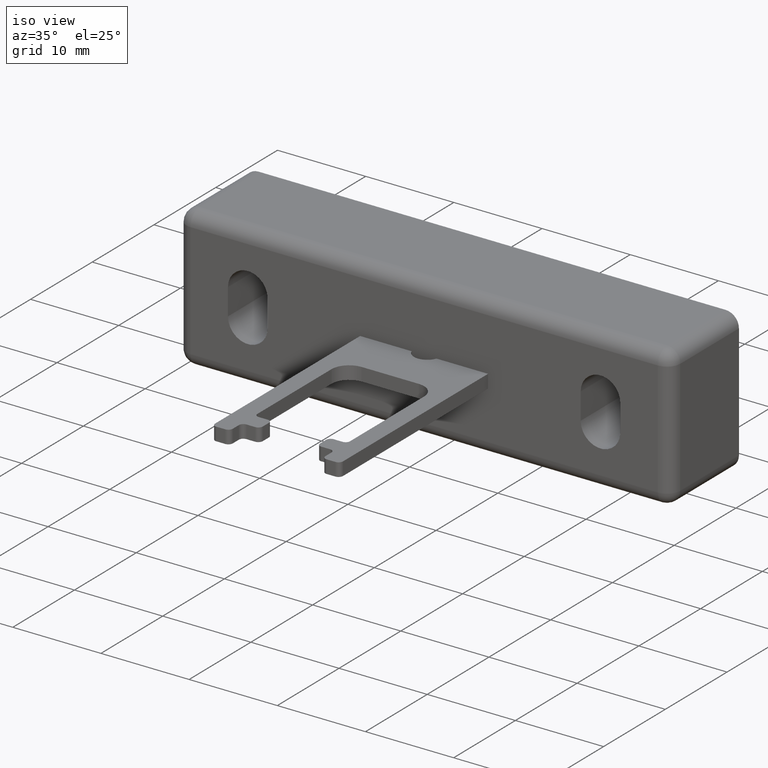
[diagram: clean part render]
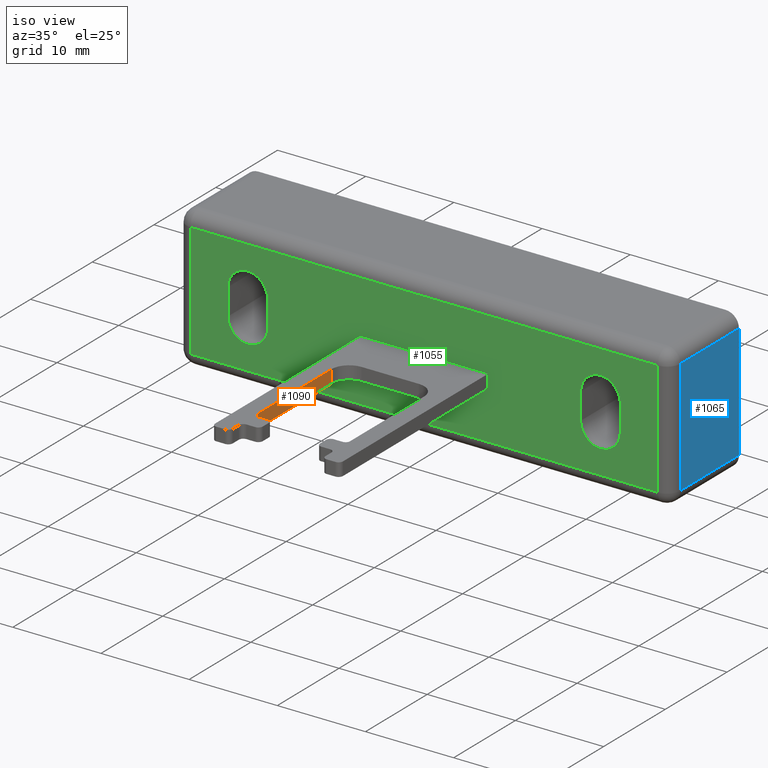
[diagram: same view with three faces highlighted in distinct colors, each labeled with its STEP entity id]
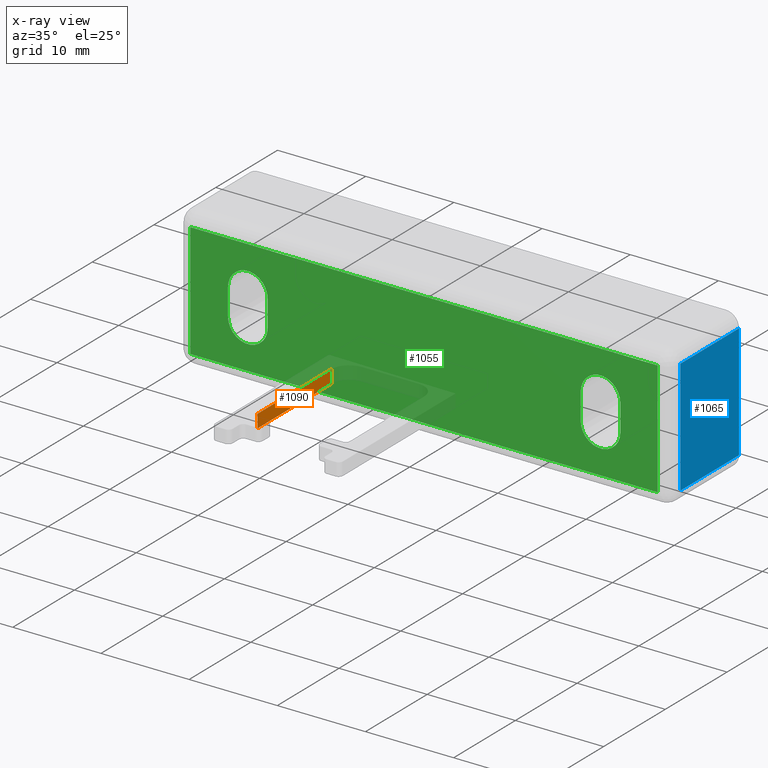
[diagram: x-ray of the same camera — body ghosted, the three highlighted faces saturated]
A machine part, iso view with three faces highlighted in distinct colors.
The next image is the same camera in x-ray (body ghosted, the three faces saturated) — at least one of them is partly hidden behind the body in this view.
Their STEP definitions:

[orange] entity #1090 — the highlighted planar face has unit normal (1, 0, 0).
#50=PLANE('',#1206);
#141=LINE('',#1838,#243);
#142=LINE('',#1841,#244);
#143=LINE('',#1843,#245);
#144=LINE('',#1844,#246);
#243=VECTOR('',#1509,1.5);
#244=VECTOR('',#1512,12.);
#245=VECTOR('',#1513,12.);
#246=VECTOR('',#1514,1.5);
#340=FACE_OUTER_BOUND('',#404,.T.);
#404=EDGE_LOOP('',(#937,#938,#939,#940));
#559=VERTEX_POINT('',#1834);
#560=VERTEX_POINT('',#1836);
#561=VERTEX_POINT('',#1840);
#562=VERTEX_POINT('',#1842);
#702=EDGE_CURVE('',#560,#559,#141,.T.);
#703=EDGE_CURVE('',#559,#561,#142,.T.);
#704=EDGE_CURVE('',#562,#560,#143,.T.);
#705=EDGE_CURVE('',#562,#561,#144,.T.);
#937=ORIENTED_EDGE('',*,*,#703,.F.);
#938=ORIENTED_EDGE('',*,*,#702,.F.);
#939=ORIENTED_EDGE('',*,*,#704,.F.);
#940=ORIENTED_EDGE('',*,*,#705,.T.);
#1090=ADVANCED_FACE('',(#340),#50,.T.);
#1206=AXIS2_PLACEMENT_3D('',#1839,#1510,#1511);
#1509=DIRECTION('',(-1.85037170770859E-16,1.,0.));
#1510=DIRECTION('center_axis',(1.,1.85037170770859E-16,0.));
#1511=DIRECTION('ref_axis',(0.,0.,-1.));
#1512=DIRECTION('',(0.,0.,-1.));
#1513=DIRECTION('',(0.,0.,1.));
#1514=DIRECTION('',(-1.85037170770859E-16,1.,0.));
#1834=CARTESIAN_POINT('',(22.7499999999999,8.5,19.5));
#1836=CARTESIAN_POINT('',(22.7499999999999,7.,19.5));
#1838=CARTESIAN_POINT('',(22.7499999999999,7.,19.5));
#1839=CARTESIAN_POINT('Origin',(22.7499999999999,7.,19.5));
#1840=CARTESIAN_POINT('',(22.7499999999999,8.5,7.5));
#1841=CARTESIAN_POINT('',(22.7499999999999,8.5,9.75000000000001));
#1842=CARTESIAN_POINT('',(22.7499999999999,7.,7.5));
#1843=CARTESIAN_POINT('',(22.7499999999999,7.,9.75000000000001));
#1844=CARTESIAN_POINT('',(22.7499999999999,7.,7.5));

[blue] entity #1065 — the highlighted planar face has unit normal (1, -0, 0).
#39=PLANE('',#1152);
#66=LINE('',#1607,#168);
#69=LINE('',#1611,#171);
#75=LINE('',#1626,#177);
#94=LINE('',#1681,#196);
#168=VECTOR('',#1274,9.50000000000001);
#171=VECTOR('',#1279,13.);
#177=VECTOR('',#1295,9.50000000000001);
#196=VECTOR('',#1354,13.);
#315=FACE_OUTER_BOUND('',#379,.T.);
#379=EDGE_LOOP('',(#837,#838,#839,#840));
#471=VERTEX_POINT('',#1567);
#476=VERTEX_POINT('',#1579);
#484=VERTEX_POINT('',#1605);
#487=VERTEX_POINT('',#1622);
#589=EDGE_CURVE('',#484,#476,#66,.T.);
#592=EDGE_CURVE('',#476,#471,#69,.T.);
#600=EDGE_CURVE('',#471,#487,#75,.T.);
#627=EDGE_CURVE('',#484,#487,#94,.T.);
#837=ORIENTED_EDGE('',*,*,#589,.F.);
#838=ORIENTED_EDGE('',*,*,#627,.T.);
#839=ORIENTED_EDGE('',*,*,#600,.F.);
#840=ORIENTED_EDGE('',*,*,#592,.F.);
#1065=ADVANCED_FACE('',(#315),#39,.T.);
#1152=AXIS2_PLACEMENT_3D('',#1683,#1356,#1357);
#1274=DIRECTION('',(-1.61486985400023E-15,-1.,0.));
#1279=DIRECTION('',(0.,0.,1.));
#1295=DIRECTION('',(1.61486985400023E-15,1.,0.));
#1354=DIRECTION('',(0.,0.,1.));
#1356=DIRECTION('center_axis',(1.,-1.61486985400023E-15,0.));
#1357=DIRECTION('ref_axis',(1.4210854715202E-15,1.,0.));
#1567=CARTESIAN_POINT('',(56.,1.5,14.5));
#1579=CARTESIAN_POINT('',(56.,1.5,1.5));
#1605=CARTESIAN_POINT('',(56.,11.,1.5));
#1607=CARTESIAN_POINT('',(56.,2.74999999999998,1.5));
#1611=CARTESIAN_POINT('',(56.,1.5,0.));
#1622=CARTESIAN_POINT('',(56.,11.,14.5));
#1626=CARTESIAN_POINT('',(56.,2.74999999999998,14.5));
#1681=CARTESIAN_POINT('',(56.,11.,0.));
#1683=CARTESIAN_POINT('Origin',(56.,0.,0.));

[green] entity #1055 — the highlighted planar face has unit normal (0, -1, 0).
#27=FACE_BOUND('',#366,.T.);
#28=FACE_BOUND('',#367,.T.);
#33=PLANE('',#1134);
#60=LINE('',#1592,#162);
#63=LINE('',#1596,#165);
#68=LINE('',#1610,#170);
#71=LINE('',#1614,#173);
#78=LINE('',#1634,#180);
#79=LINE('',#1638,#181);
#80=LINE('',#1642,#182);
#81=LINE('',#1646,#183);
#162=VECTOR('',#1258,53.);
#165=VECTOR('',#1263,13.);
#170=VECTOR('',#1278,13.);
#173=VECTOR('',#1283,53.);
#180=VECTOR('',#1304,3.00000000000091);
#181=VECTOR('',#1307,3.00000000000091);
#182=VECTOR('',#1310,3.00000000000091);
#183=VECTOR('',#1313,3.00000000000091);
#305=FACE_OUTER_BOUND('',#365,.T.);
#365=EDGE_LOOP('',(#777,#778,#779,#780));
#366=EDGE_LOOP('',(#781,#782,#783,#784));
#367=EDGE_LOOP('',(#785,#786,#787,#788));
#431=CIRCLE('',#1135,2.25);
#432=CIRCLE('',#1136,2.25);
#433=CIRCLE('',#1137,2.25);
#434=CIRCLE('',#1138,2.25);
#469=VERTEX_POINT('',#1564);
#474=VERTEX_POINT('',#1574);
#475=VERTEX_POINT('',#1578);
#480=VERTEX_POINT('',#1588);
#489=VERTEX_POINT('',#1632);
#490=VERTEX_POINT('',#1633);
#491=VERTEX_POINT('',#1635);
#492=VERTEX_POINT('',#1637);
#493=VERTEX_POINT('',#1640);
#494=VERTEX_POINT('',#1641);
#495=VERTEX_POINT('',#1643);
#496=VERTEX_POINT('',#1645);
#581=EDGE_CURVE('',#475,#480,#60,.T.);
#584=EDGE_CURVE('',#480,#474,#63,.T.);
#591=EDGE_CURVE('',#469,#475,#68,.T.);
#594=EDGE_CURVE('',#474,#469,#71,.T.);
#603=EDGE_CURVE('',#489,#490,#78,.T.);
#604=EDGE_CURVE('',#490,#491,#431,.T.);
#605=EDGE_CURVE('',#491,#492,#79,.T.);
#606=EDGE_CURVE('',#492,#489,#432,.T.);
#607=EDGE_CURVE('',#493,#494,#80,.T.);
#608=EDGE_CURVE('',#494,#495,#433,.T.);
#609=EDGE_CURVE('',#495,#496,#81,.T.);
#610=EDGE_CURVE('',#496,#493,#434,.T.);
#777=ORIENTED_EDGE('',*,*,#581,.F.);
#778=ORIENTED_EDGE('',*,*,#591,.F.);
#779=ORIENTED_EDGE('',*,*,#594,.F.);
#780=ORIENTED_EDGE('',*,*,#584,.F.);
#781=ORIENTED_EDGE('',*,*,#603,.T.);
#782=ORIENTED_EDGE('',*,*,#604,.T.);
#783=ORIENTED_EDGE('',*,*,#605,.T.);
#784=ORIENTED_EDGE('',*,*,#606,.T.);
#785=ORIENTED_EDGE('',*,*,#607,.T.);
#786=ORIENTED_EDGE('',*,*,#608,.T.);
#787=ORIENTED_EDGE('',*,*,#609,.T.);
#788=ORIENTED_EDGE('',*,*,#610,.T.);
#1055=ADVANCED_FACE('',(#305,#27,#28),#33,.T.);
#1134=AXIS2_PLACEMENT_3D('',#1631,#1302,#1303);
#1135=AXIS2_PLACEMENT_3D('',#1636,#1305,#1306);
#1136=AXIS2_PLACEMENT_3D('',#1639,#1308,#1309);
#1137=AXIS2_PLACEMENT_3D('',#1644,#1311,#1312);
#1138=AXIS2_PLACEMENT_3D('',#1647,#1314,#1315);
#1258=DIRECTION('',(-1.,0.,0.));
#1263=DIRECTION('',(0.,0.,1.));
#1278=DIRECTION('',(0.,0.,-1.));
#1283=DIRECTION('',(1.,0.,0.));
#1302=DIRECTION('center_axis',(0.,-1.,0.));
#1303=DIRECTION('ref_axis',(1.,0.,0.));
#1304=DIRECTION('',(0.,0.,1.));
#1305=DIRECTION('center_axis',(0.,1.,0.));
#1306=DIRECTION('ref_axis',(1.,0.,0.));
#1307=DIRECTION('',(0.,0.,-1.));
#1308=DIRECTION('center_axis',(0.,1.,0.));
#1309=DIRECTION('ref_axis',(-1.,0.,0.));
#1310=DIRECTION('',(0.,0.,1.));
#1311=DIRECTION('center_axis',(0.,1.,0.));
#1312=DIRECTION('ref_axis',(1.,0.,0.));
#1313=DIRECTION('',(0.,0.,-1.));
#1314=DIRECTION('center_axis',(0.,1.,0.));
#1315=DIRECTION('ref_axis',(-1.,0.,0.));
#1564=CARTESIAN_POINT('',(54.5,0.,14.5));
#1574=CARTESIAN_POINT('',(1.5,0.,14.5));
#1578=CARTESIAN_POINT('',(54.5,0.,1.5));
#1588=CARTESIAN_POINT('',(1.5,0.,1.5));
#1592=CARTESIAN_POINT('',(14.,0.,1.5));
#1596=CARTESIAN_POINT('',(1.5,0.,0.));
#1610=CARTESIAN_POINT('',(54.5,0.,0.));
#1614=CARTESIAN_POINT('',(14.,0.,14.5));
#1631=CARTESIAN_POINT('Origin',(0.,0.,0.));
#1632=CARTESIAN_POINT('',(5.74999999999955,0.,6.49999999999909));
#1633=CARTESIAN_POINT('',(5.74999999999955,0.,9.5));
#1634=CARTESIAN_POINT('',(5.74999999999955,0.,3.24999999999955));
#1635=CARTESIAN_POINT('',(10.2499999999995,0.,9.5));
#1636=CARTESIAN_POINT('Origin',(7.99999999999955,0.,9.5));
#1637=CARTESIAN_POINT('',(10.2499999999995,0.,6.49999999999909));
#1638=CARTESIAN_POINT('',(10.2499999999995,0.,4.75));
#1639=CARTESIAN_POINT('Origin',(7.99999999999955,0.,6.49999999999909));
#1640=CARTESIAN_POINT('',(45.75,0.,6.49999999999909));
#1641=CARTESIAN_POINT('',(45.75,0.,9.5));
#1642=CARTESIAN_POINT('',(45.75,0.,3.24999999999955));
#1643=CARTESIAN_POINT('',(50.25,0.,9.5));
#1644=CARTESIAN_POINT('Origin',(48.,0.,9.5));
#1645=CARTESIAN_POINT('',(50.25,0.,6.49999999999909));
#1646=CARTESIAN_POINT('',(50.25,0.,4.75));
#1647=CARTESIAN_POINT('Origin',(48.,0.,6.49999999999909));